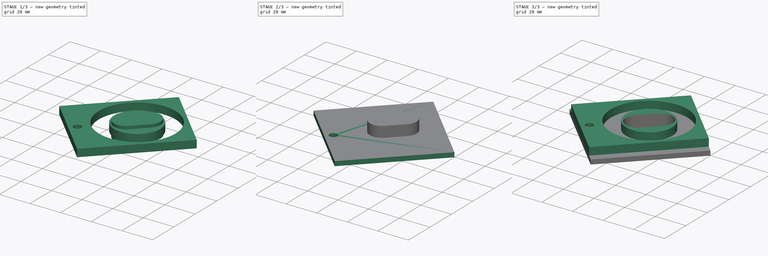
[diagram: build sequence overview — one tinted view per stage of 3, left to right]
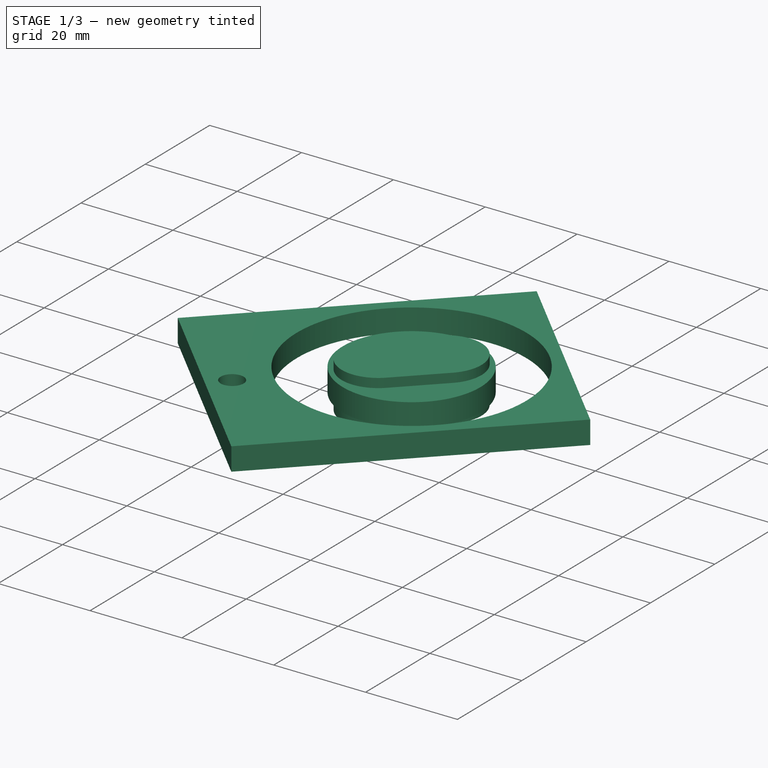
[diagram: stage 1 of 3 — iso view after this stage's code; geometry added in this stage tinted green]
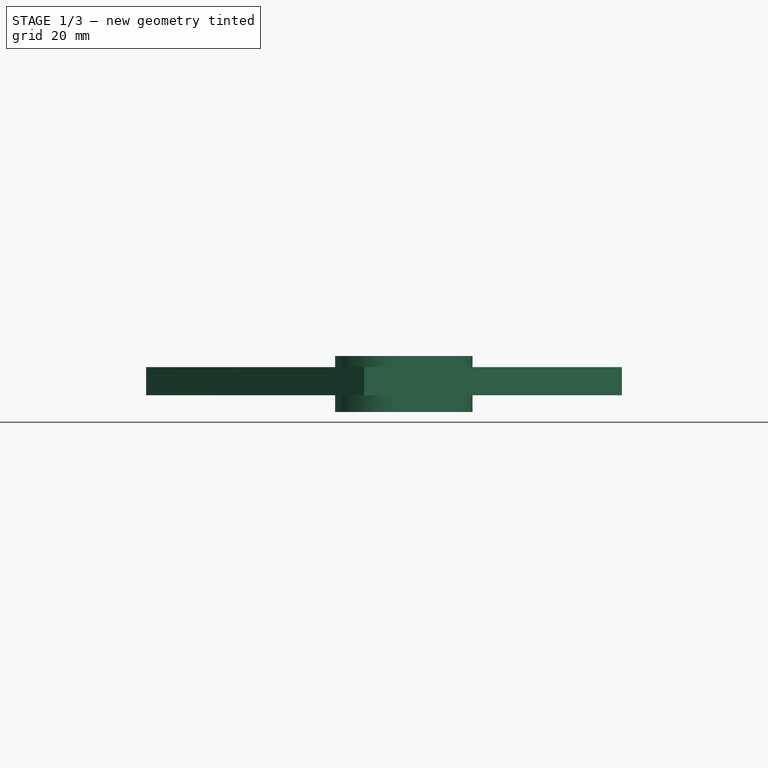
[diagram: stage 1 of 3 — front view after this stage's code; geometry added in this stage tinted green]
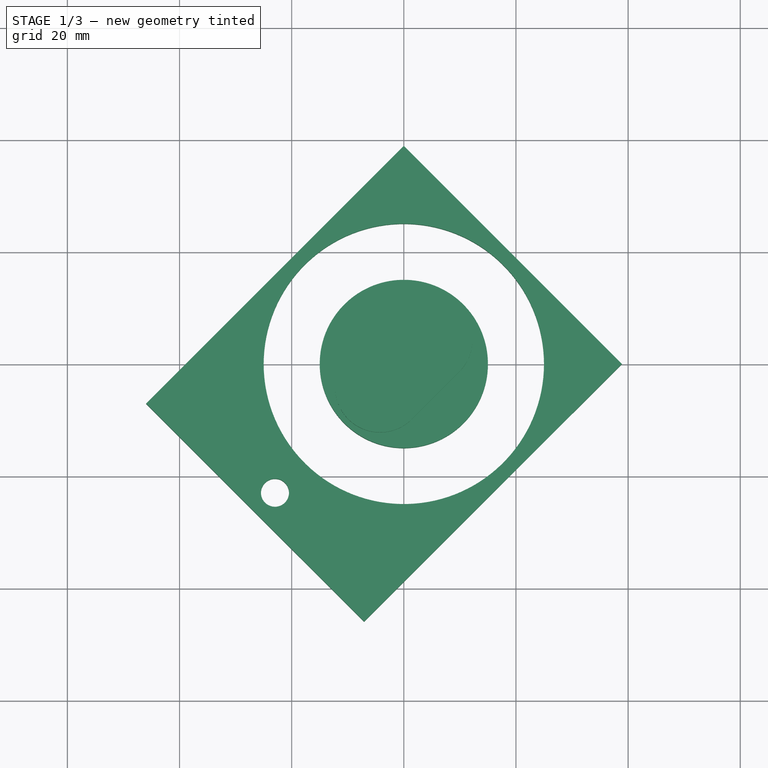
[diagram: stage 1 of 3 — top view after this stage's code; geometry added in this stage tinted green]
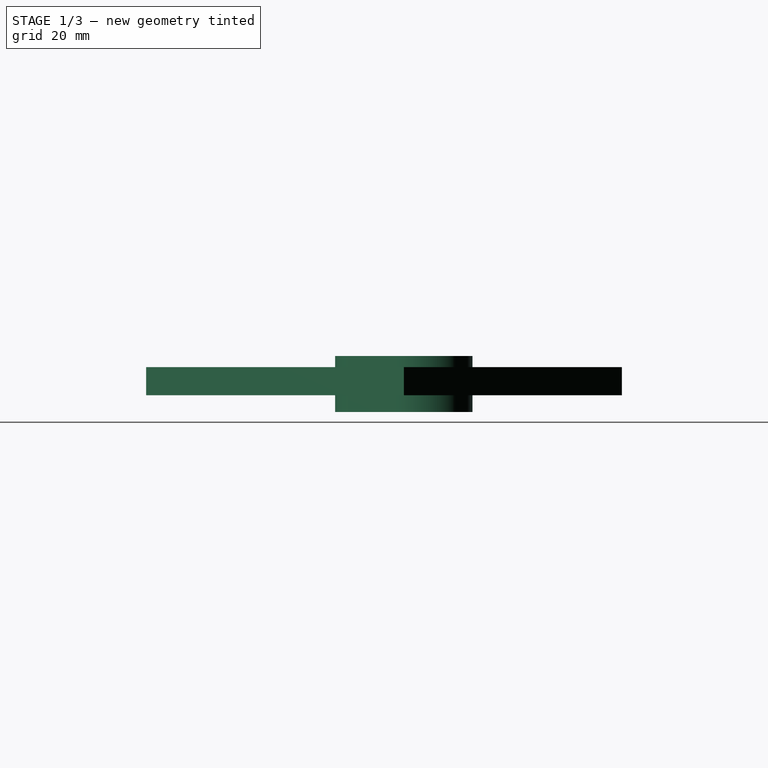
[diagram: stage 1 of 3 — right view after this stage's code; geometry added in this stage tinted green]
FCSTD DOCUMENT  (FreeCAD 0.22R38467 (Git))
Label: Control Slider
objects: Sketcher::SketchObject×3, Part::Extrusion×3, PartDesign::CoordinateSystem×1, Part::MultiFuse×1, Part::Cut×1, PartDesign::Line×1, App::Part×1
note: 13 computed .brp shape members not serialized (recipe doc carries the construction recipe); baked Part::Feature solids carry a one-line shape summary decoded from their .brp

FEATURE [PartDesign::CoordinateSystem] LCS_Origin
  AttacherType = Attacher::AttachEngine3D
  AttachmentSupport = -> [X_Axis]
  MapMode = 2
FEATURE [Sketcher::SketchObject] Sketch  label="Ring Profile"
  ArcFitTolerance = 1e-06
  FullyConstrained = true
  MakeInternals = false
  sketch-geometry (8):
    g0: LineSegment [constr] StartX=-22.981 StartY=-22.981 StartZ=0 EndX=19.4454 EndY=19.4454 EndZ=0
    g1: Circle CenterX=0 CenterY=0 CenterZ=0 NormalX=0 NormalY=0 NormalZ=1 AngleXU=0 Radius=15
    g2: Circle CenterX=0 CenterY=0 CenterZ=0 NormalX=0 NormalY=0 NormalZ=1 AngleXU=0 Radius=25
    g3: LineSegment StartX=0 StartY=38.8909 StartZ=0 EndX=38.8909 EndY=-7.1e-15 EndZ=0
    g4: LineSegment StartX=38.8909 StartY=-7.1e-15 StartZ=0 EndX=-7.07107 EndY=-45.9619 EndZ=0
    g5: LineSegment StartX=0 StartY=38.8909 StartZ=0 EndX=-45.9619 EndY=-7.07107 EndZ=0
    g6: LineSegment StartX=-45.9619 StartY=-7.07107 StartZ=0 EndX=-7.07107 EndY=-45.9619 EndZ=0
    g7: Circle CenterX=-22.981 CenterY=-22.981 CenterZ=0 NormalX=0 NormalY=0 NormalZ=1 AngleXU=0 Radius=2.5
  constraints (21):
    c: Angle(g-1,g0) = 0.785398
    c: Diameter(g1) = 30
    c: Diameter(g2) = 50
    c: Coincident(g1,g2)
    c: Coincident(g4,g3)
    c: Coincident(g5,g3)
    c: Coincident(g6,g4)
    c: Perpendicular(g4,g6)
    c: Perpendicular(g5,g3)
    c: Perpendicular(g6,g5)
    c: Coincident(g5,g6)
    c: Symmetric(g3,g3,g0)
    c: PointOnObject(g3,g-2)
    c: Distance(g6) = 55
    c: Distance(g5) = 65
    c: PointOnObject(g0,g3)
    c: Coincident(g1,g-1)
    c: PointOnObject(g1,g0)
    c: Distance(g0) = 60
    c: Diameter(g7) = 5
    c: Coincident(g7,g0)
FEATURE [Part::Extrusion] Extrude  label="Rings"
  Base = -> Sketch
  Dir = (0,0,1)
  DirMode = 2
  FaceMakerClass = Part::FaceMakerBullseye
  FaceMakerMode = 3
  LengthFwd = 5
  LengthRev = 0
  Solid = true
  Symmetric = false
FEATURE [Sketcher::SketchObject] Sketch002  label="Slot Profile"
  ArcFitTolerance = 1e-06
  AttachmentSupport = -> [Fusion]
  FullyConstrained = false
  MakeInternals = false
  MapMode = 5
  Placement = pos=(0,0,-3) rot=(1,0,0;3.14159rad)
  sketch-geometry (5):
    g0: LineSegment [constr] StartX=16.7013 StartY=-16.7013 StartZ=0 EndX=-29.07 EndY=29.07 EndZ=0
    g1: ArcOfCircle CenterX=4.24264 CenterY=-4.24264 CenterZ=0 NormalX=0 NormalY=0 NormalZ=1 AngleXU=0 Radius=8 StartAngle=3.92699 EndAngle=7.06858
    g2: ArcOfCircle CenterX=-4.24264 CenterY=4.24264 CenterZ=0 NormalX=0 NormalY=0 NormalZ=1 AngleXU=0 Radius=8 StartAngle=0.785398 EndAngle=3.92699
    g3: LineSegment StartX=-1.41421 StartY=-9.89949 StartZ=0 EndX=-9.89949 EndY=-1.41421 EndZ=0
    g4: LineSegment StartX=9.89949 StartY=1.41421 StartZ=0 EndX=1.41421 EndY=9.89949 EndZ=0
  constraints (11):
    c: PointOnObject(g-1,g0)
    c: Angle(g-2,g0) = 0.785398
    c: Tangent(g1,g3) = 1.5708
    c: Tangent(g1,g4) = -1.5708
    c: Tangent(g2,g3) = 1.5708
    c: Tangent(g2,g4) = -1.5708
    c: Equal(g1,g2)
    c: PointOnObject(g1,g0)
    c: Radius(g2) = 8
    c: Symmetric(g1,g2,g-1)
    c: Distance(g4) = 12
FEATURE [Part::Extrusion] Extrude002  label="Slot"
  Base = -> Sketch002
  Dir = (0,0,-1)
  DirMode = 2
  FaceMakerClass = Part::FaceMakerBullseye
  FaceMakerMode = 3
  LengthFwd = 10
  LengthRev = 0
  Reversed = true
  Solid = true
  Symmetric = false
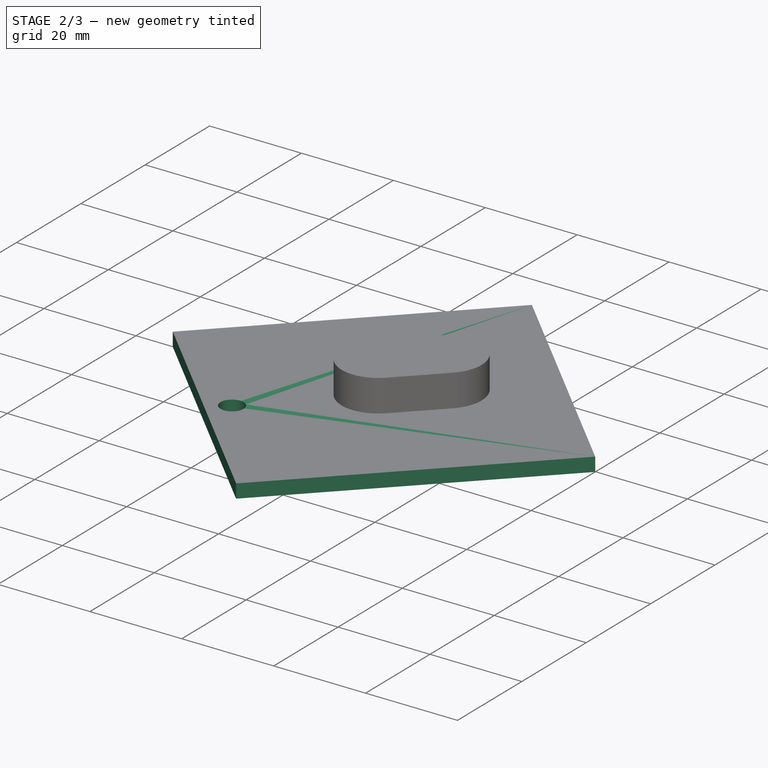
[diagram: stage 2 of 3 — iso view after this stage's code; geometry added in this stage tinted green]
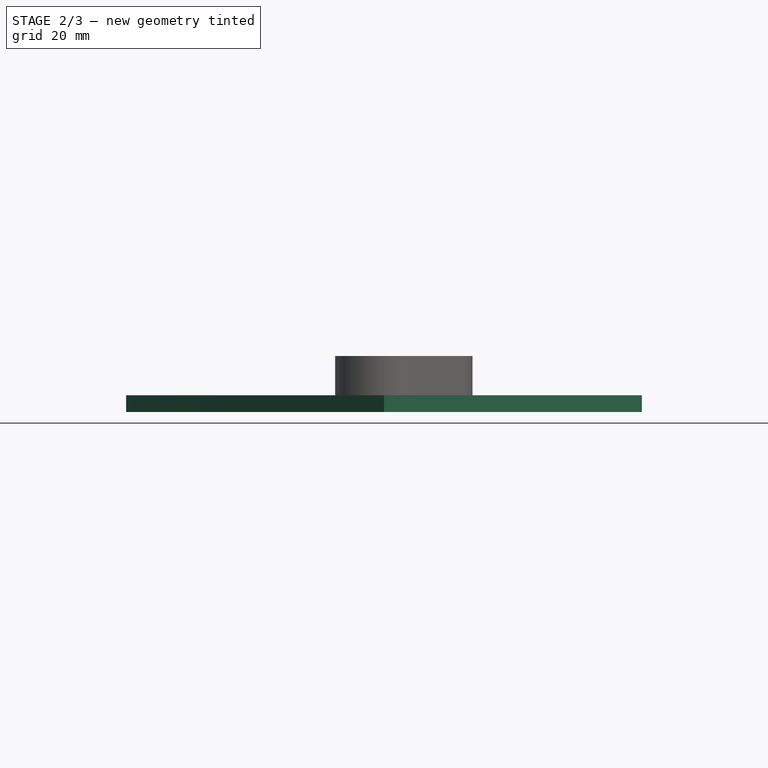
[diagram: stage 2 of 3 — front view after this stage's code; geometry added in this stage tinted green]
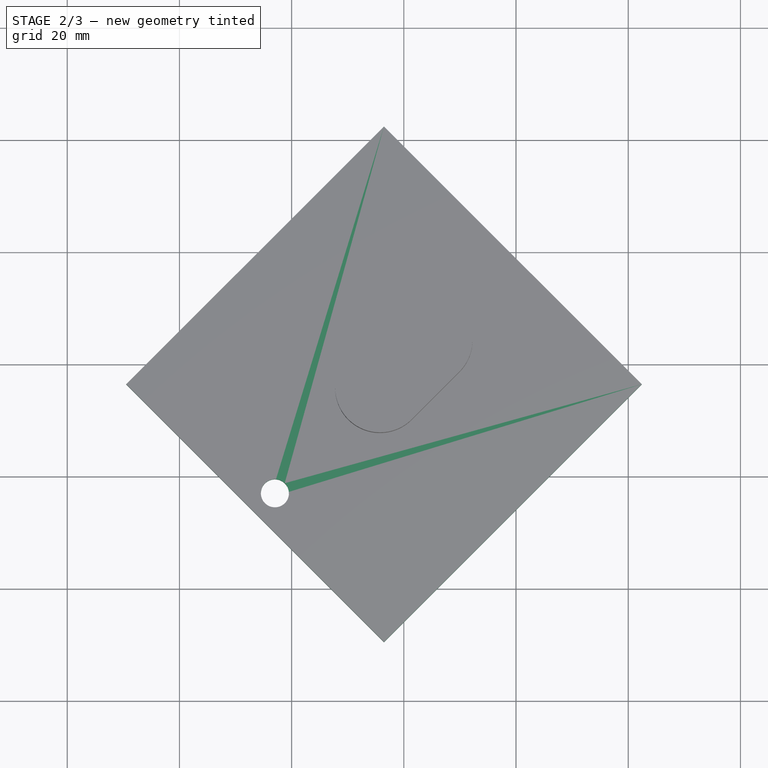
[diagram: stage 2 of 3 — top view after this stage's code; geometry added in this stage tinted green]
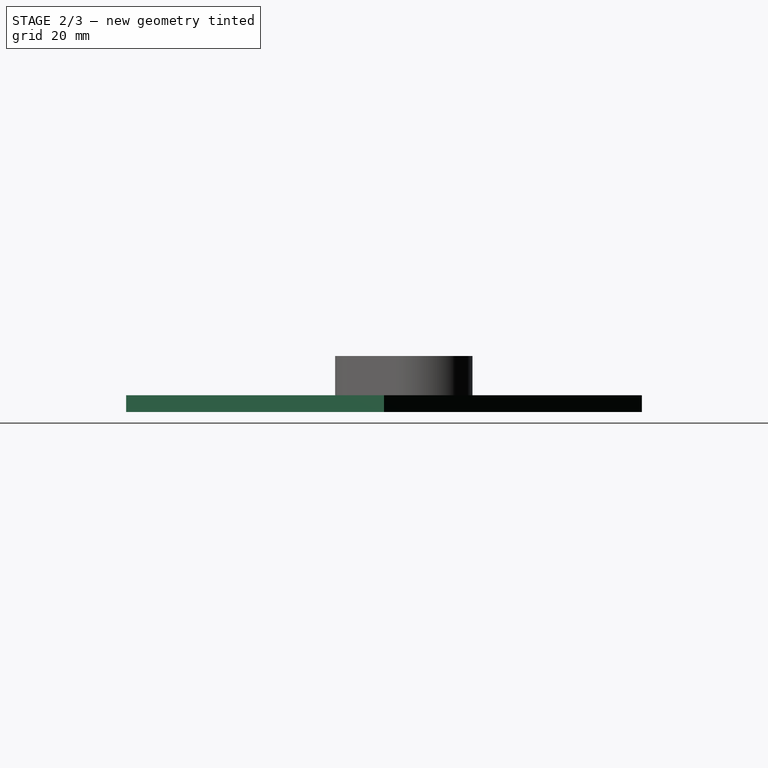
[diagram: stage 2 of 3 — right view after this stage's code; geometry added in this stage tinted green]
FEATURE [Sketcher::SketchObject] Sketch001  label="Base Profile"
  ArcFitTolerance = 1e-06
  AttachmentSupport = -> [Extrude]
  ExternalGeometry = -> [Extrude]
  FullyConstrained = true
  MakeInternals = false
  MapMode = 5
  Placement = pos=(0,0,0) rot=(1,0,0;3.14159rad)
  sketch-geometry (6):
    g0: LineSegment StartX=-49.4975 StartY=3.53553 StartZ=0 EndX=-3.53553 EndY=-42.4264 EndZ=0
    g1: LineSegment StartX=-3.53553 StartY=-42.4264 StartZ=0 EndX=42.4264 EndY=3.53553 EndZ=0
    g2: LineSegment StartX=42.4264 StartY=3.53553 StartZ=0 EndX=-3.53553 EndY=49.4975 EndZ=0
    g3: LineSegment StartX=-49.4975 StartY=3.53553 StartZ=0 EndX=-3.53553 EndY=49.4975 EndZ=0
    g4: Circle CenterX=-22.981 CenterY=22.981 CenterZ=0 NormalX=0 NormalY=0 NormalZ=1 AngleXU=0 Radius=2.5
    g5: LineSegment [constr] StartX=0 StartY=0 StartZ=0 EndX=-22.981 EndY=22.981 EndZ=0
  constraints (18):
    c: Coincident(g1,g2)
    c: Coincident(g0,g1)
    c: Perpendicular(g1,g2)
    c: Coincident(g3,g2)
    c: Perpendicular(g0,g3)
    c: Perpendicular(g1,g0)
    c: Coincident(g3,g0)
    c: PointOnObject(g-4,g3)
    c: PointOnObject(g-6,g3)
    c: PointOnObject(g-3,g1)
    c: Distance(g1,g-5) = 5
    c: Distance(g0,g-3) = 5
    c: Diameter(g4) = 5
    c: Coincident(g5,g-1)
    c: Angle(g-2,g5) = 0.785398
    c: Coincident(g5,g4)
    c: Distance(g5) = 32.5
    c: Distance(g3) = 65
FEATURE [Part::Extrusion] Extrude001  label="Base"
  Base = -> Sketch001
  Dir = (0,0,-1)
  DirMode = 2
  FaceMakerClass = Part::FaceMakerBullseye
  FaceMakerMode = 3
  LengthFwd = 3
  LengthRev = 0
  Solid = true
  Symmetric = false
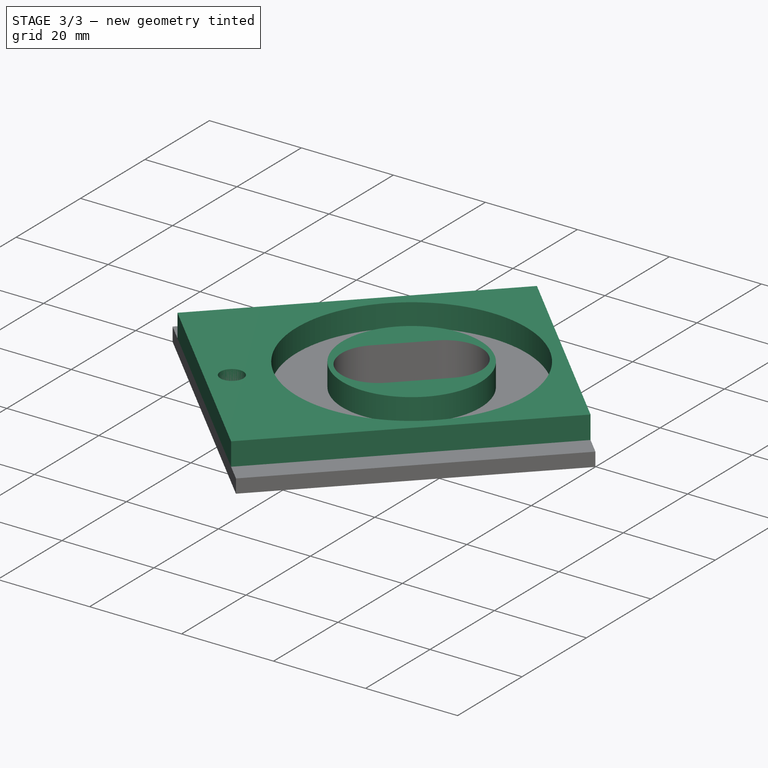
[diagram: stage 3 of 3 — iso view after this stage's code; geometry added in this stage tinted green]
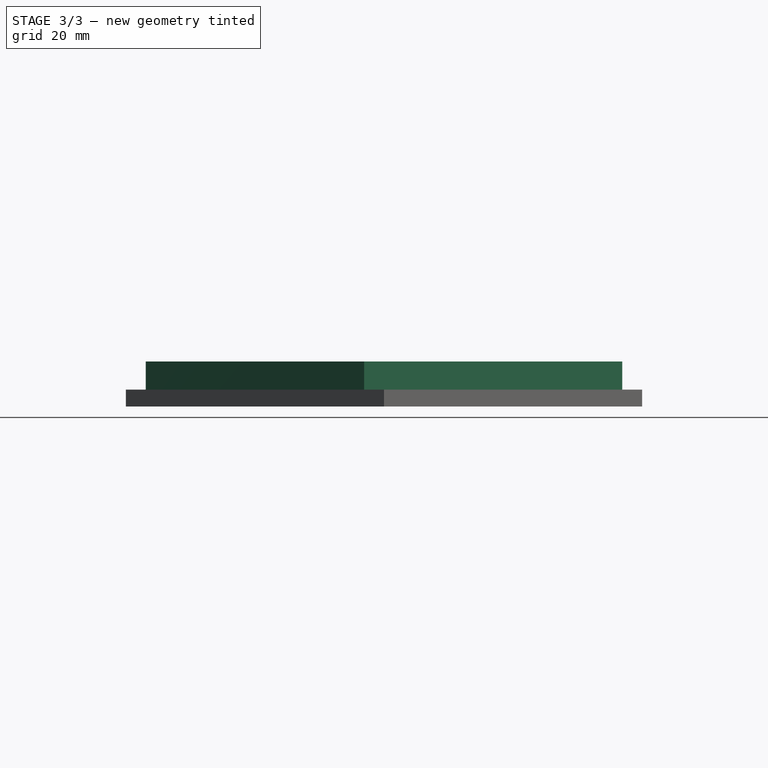
[diagram: stage 3 of 3 — front view after this stage's code; geometry added in this stage tinted green]
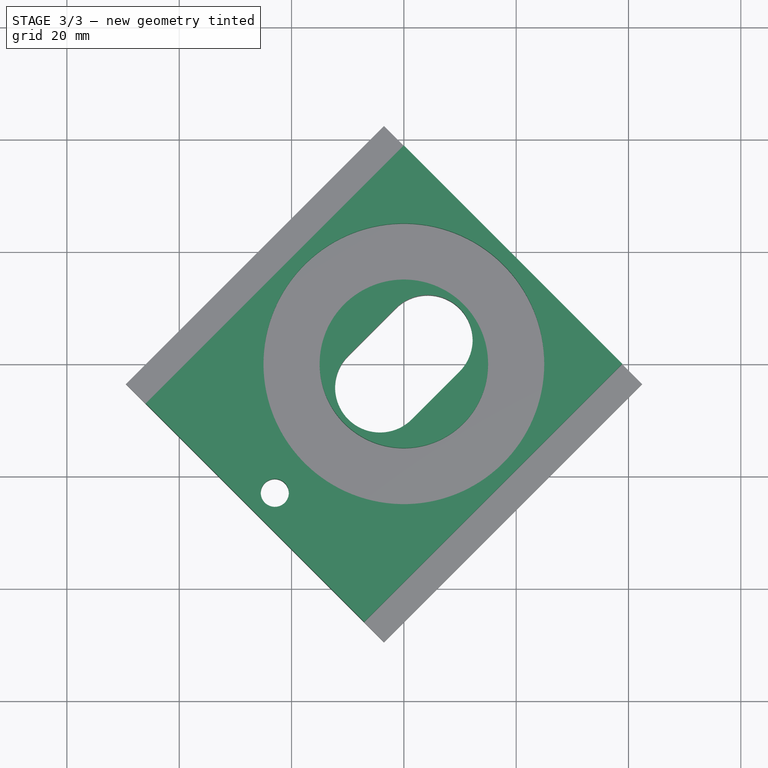
[diagram: stage 3 of 3 — top view after this stage's code; geometry added in this stage tinted green]
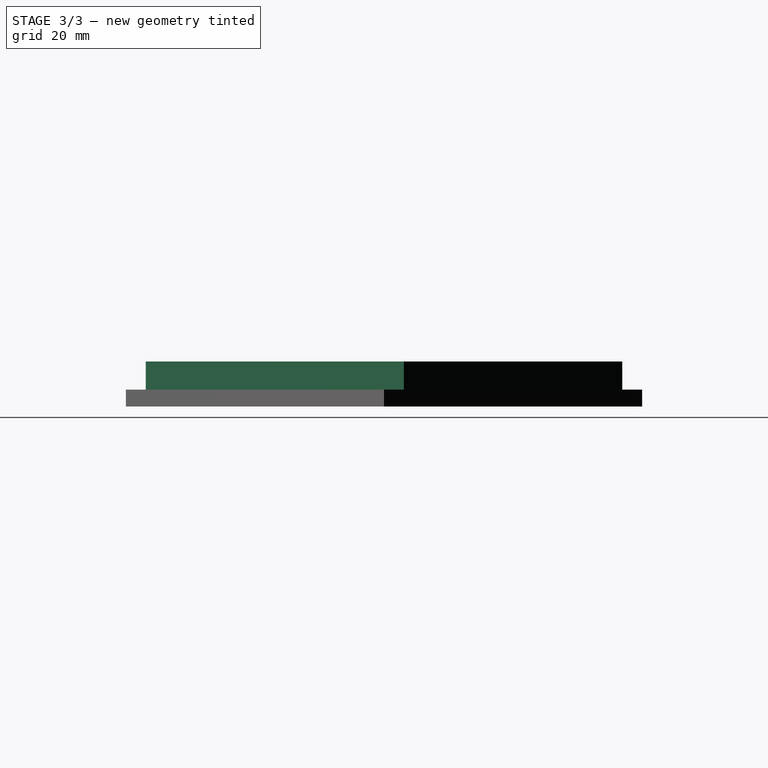
[diagram: stage 3 of 3 — right view after this stage's code; geometry added in this stage tinted green]
FEATURE [Part::MultiFuse] Fusion
  Refine = true
  Shapes = -> [Extrude001,Extrude]
FEATURE [Part::Cut] Cut
  Base = -> Fusion
  Refine = true
  Tool = -> Extrude002
FEATURE [PartDesign::Line] HoleAxis_1  label="Control Pin AP"
  AttacherType = Attacher::AttachEngineLine
  AttachmentSupport = -> [Cut]
  Length = 7.04534
  MapMode = 19
  Placement = pos=(-22.981,-22.981,5) rot=(0,0,1;0rad)
  ResizeMode = 1
FEATURE [App::Part] Control_Slider  label="Control Slider"
  Group = -> [LCS_Origin,Sketch,Extrude,Sketch002,Sketch001,Extrude001,Fusion,Extrude002,Cut,HoleAxis_1]
  Origin = -> Origin
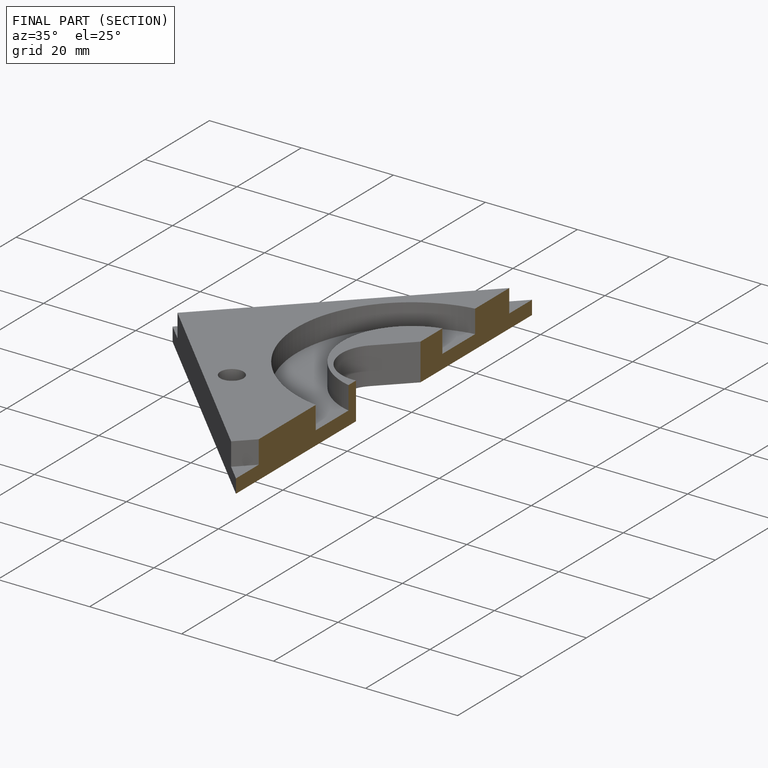
[diagram: finished part — half-section view (interior)]
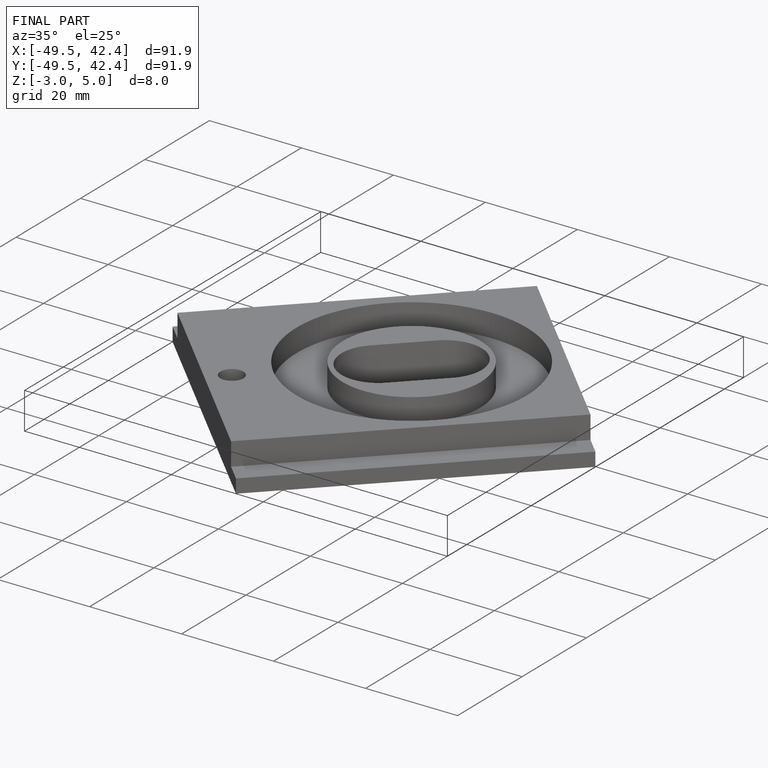
[diagram: finished part — iso view with bounding-box wireframe]
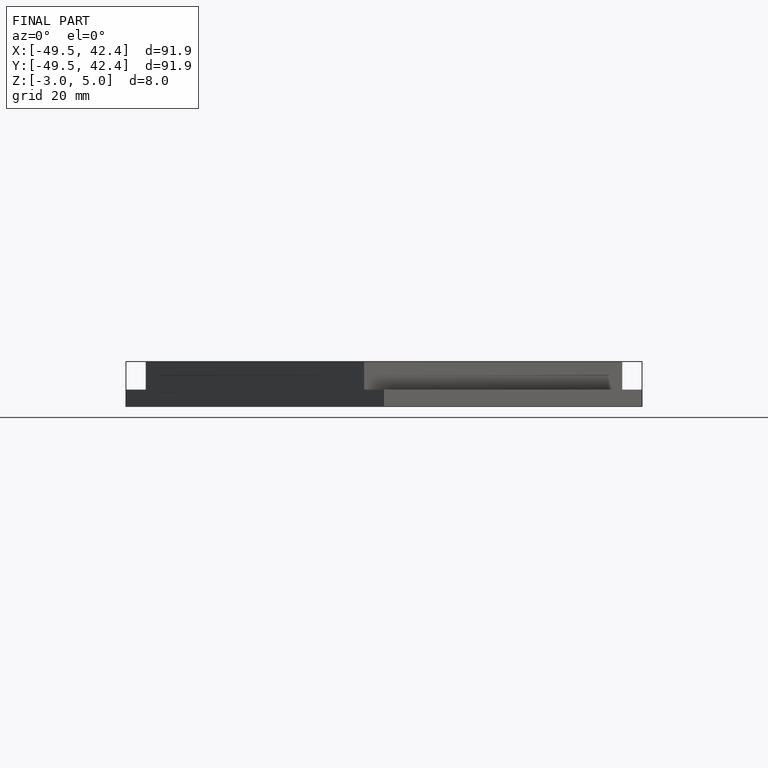
[diagram: finished part — front view with bounding-box wireframe]
